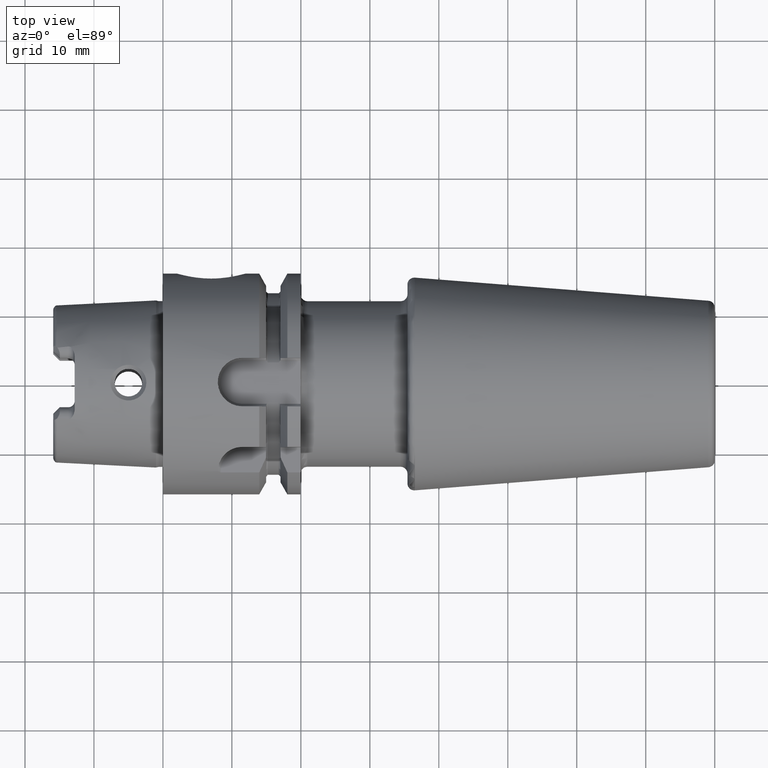
[diagram: clean part render]
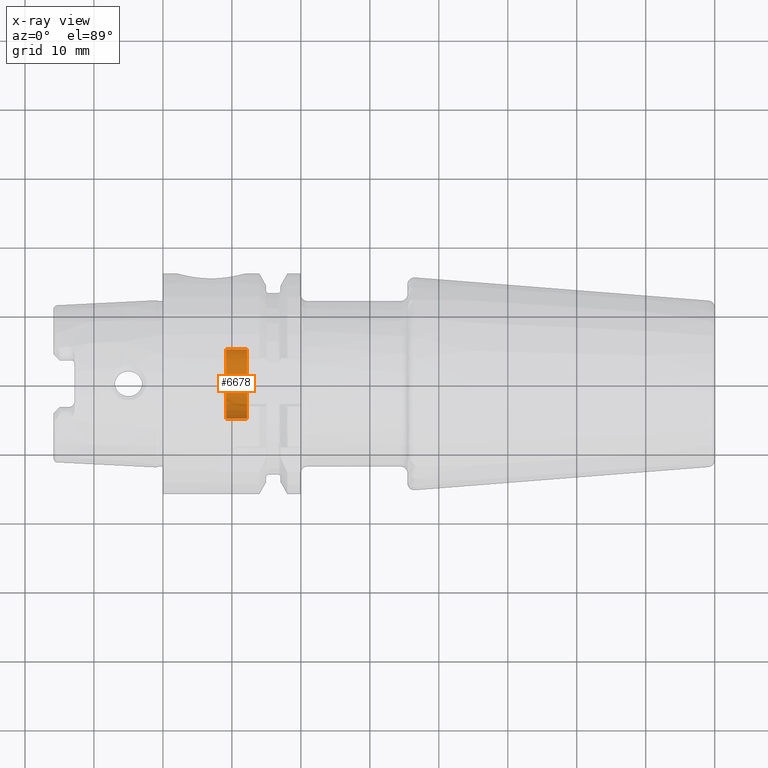
[diagram: x-ray — body ghosted, one internal face saturated and labeled with its STEP entity id]
A machine part, top view, then the same camera in x-ray: the body is ghosted and one INTERNAL B-rep face — a face not visible from any outside direction — is saturated and labeled: STEP entity #6678.
In plain terms, the highlighted cylindrical surface (edge-blend (fillet) strip) has radius 5 mm, axis along (-1, 0, 0).
Its self-contained STEP definition (entity closure, byte-faithful):
#6627=CARTESIAN_POINT('',(1.22E1,0.E0,0.E0));
#6628=DIRECTION('',(-1.E0,0.E0,0.E0));
#6629=DIRECTION('',(0.E0,1.E0,0.E0));
#6630=AXIS2_PLACEMENT_3D('',#6627,#6628,#6629);
#6632=CARTESIAN_POINT('',(9.1625E0,0.E0,0.E0));
#6633=DIRECTION('',(1.E0,0.E0,0.E0));
#6634=DIRECTION('',(0.E0,-1.E0,0.E0));
#6635=AXIS2_PLACEMENT_3D('',#6632,#6633,#6634);
#6637=DIRECTION('',(1.E0,0.E0,0.E0));
#6638=VECTOR('',#6637,3.0375E0);
#6639=CARTESIAN_POINT('',(9.1625E0,5.E0,0.E0));
#6640=LINE('',#6639,#6638);
#6646=DIRECTION('',(1.E0,0.E0,0.E0));
#6647=VECTOR('',#6646,3.0375E0);
#6648=CARTESIAN_POINT('',(9.1625E0,-5.E0,0.E0));
#6649=LINE('',#6648,#6647);
#6655=CARTESIAN_POINT('',(9.1625E0,5.E0,0.E0));
#6656=CARTESIAN_POINT('',(1.22E1,5.E0,0.E0));
#6657=VERTEX_POINT('',#6655);
#6658=VERTEX_POINT('',#6656);
#6659=CARTESIAN_POINT('',(9.1625E0,-5.E0,0.E0));
#6660=CARTESIAN_POINT('',(1.22E1,-5.E0,0.E0));
#6661=VERTEX_POINT('',#6659);
#6662=VERTEX_POINT('',#6660);
#6663=CARTESIAN_POINT('',(1.588134051241E1,0.E0,0.E0));
#6664=DIRECTION('',(-1.E0,0.E0,0.E0));
#6665=DIRECTION('',(0.E0,1.E0,0.E0));
#6666=AXIS2_PLACEMENT_3D('',#6663,#6664,#6665);
#6667=CYLINDRICAL_SURFACE('',#6666,5.E0);
#6669=ORIENTED_EDGE('',*,*,#6668,.T.);
#6671=ORIENTED_EDGE('',*,*,#6670,.T.);
#6673=ORIENTED_EDGE('',*,*,#6672,.F.);
#6675=ORIENTED_EDGE('',*,*,#6674,.T.);
#6676=EDGE_LOOP('',(#6669,#6671,#6673,#6675));
#6677=FACE_OUTER_BOUND('',#6676,.F.);
#6678=ADVANCED_FACE('',(#6677),#6667,.F.);
#6631=CIRCLE('',#6630,5.E0);
#6636=CIRCLE('',#6635,5.E0);
#6668=EDGE_CURVE('',#6657,#6658,#6640,.T.);
#6670=EDGE_CURVE('',#6658,#6662,#6631,.T.);
#6672=EDGE_CURVE('',#6661,#6662,#6649,.T.);
#6674=EDGE_CURVE('',#6661,#6657,#6636,.T.);